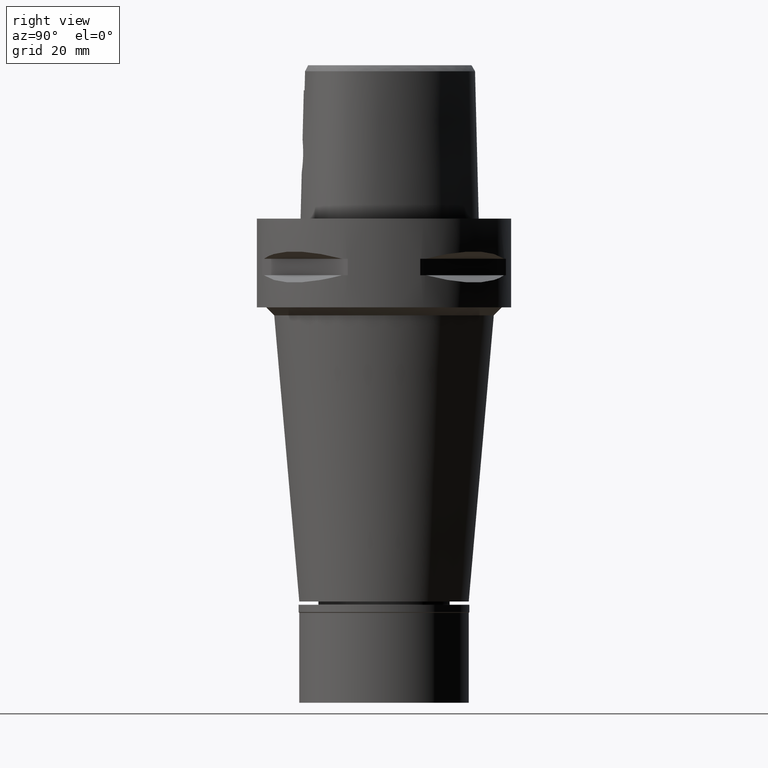
[diagram: clean part render]
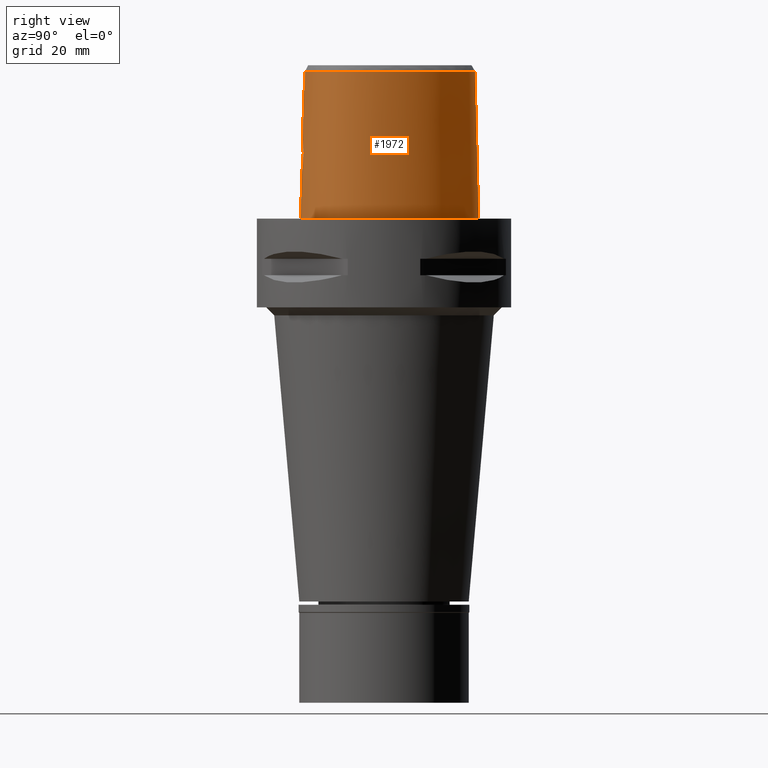
[diagram: same view with one face highlighted and labeled with its STEP entity id]
A machine part, right view. The second image highlights one B-rep face of the part: STEP entity #1972.
In plain terms, the highlighted face is a freeform B-spline surface patch.
Its self-contained STEP definition (entity closure, byte-faithful):
#5 = CARTESIAN_POINT ( 'NONE',  ( 18.12052889934000177, -13.74516014025000032, 24.59140913771999948 ) ) ;
#8 = VERTEX_POINT ( 'NONE', #4769 ) ;
#25 = CARTESIAN_POINT ( 'NONE',  ( 3.918456791367074921, -20.04170609324424035, 16.53266420033527240 ) ) ;
#35 = CARTESIAN_POINT ( 'NONE',  ( 4.750826074828999879, 21.65775769418999985, 37.25233265418000173 ) ) ;
#43 = ORIENTED_EDGE ( 'NONE', *, *, #2833, .T. ) ;
#63 = CARTESIAN_POINT ( 'NONE',  ( 2.570081009077909151, -20.27170108689831807, 12.36908902938835730 ) ) ;
#71 = CARTESIAN_POINT ( 'NONE',  ( 10.75753574163999993, 19.18839676167000263, -0.7304378951799000985 ) ) ;
#83 = B_SPLINE_CURVE_WITH_KNOTS ( 'NONE', 3,
 ( #607, #2190, #4513, #223, #2167, #3734, #3350, #1807, #4928, #1146, #2707, #2260, #2335, #1566, #1544, #4686, #2734, #406, #320, #1064, #295, #3903, #3490 ),
 .UNSPECIFIED., .F., .F.,
 ( 4, 1, 1, 1, 1, 1, 1, 1, 1, 1, 1, 1, 1, 1, 1, 1, 1, 1, 1, 1, 4 ),
 ( 0.0000000000000000000, 0.08333333333340001148, 0.1666666666667000196, 0.2083333333333000081, 0.2500000000000000000, 0.2916666666666999919, 0.3125000000000000000, 0.3333333333333000081, 0.3541666666666000163, 0.3749999999998999689, 0.4166666666666000163, 0.4583333333332000326, 0.4999999999998999689, 0.5833333333331000015, 0.6666666666664999852, 0.7499999999998000488, 0.8333333333329999704, 0.8749999999997000177, 0.9166666666664000651, 0.9583333333329999704, 1.000000000000000000 ),
 .UNSPECIFIED. ) ;
#88 = CARTESIAN_POINT ( 'NONE',  ( 3.289399613302775638, -20.19244639184481116, 13.13636645578711359 ) ) ;
#96 = CARTESIAN_POINT ( 'NONE',  ( 20.96392229026999843, -8.820258251847000963, 24.59140913771999948 ) ) ;
#112 = CARTESIAN_POINT ( 'NONE',  ( 2.144427845708294811, -20.13626349860851761, 18.93810770242787100 ) ) ;
#120 = CARTESIAN_POINT ( 'NONE',  ( 2.568271206886000080, 23.31126238921000038, -0.7304378951799000985 ) ) ;
#148 = CARTESIAN_POINT ( 'NONE',  ( 20.09084466970000094, -11.59945457773000221, 11.93048562126999990 ) ) ;
#163 = DIRECTION ( 'NONE',  ( 1.756133882148959260E-12, 0.02499051290962944413, -0.9996876883629776112 ) ) ;
#176 = CARTESIAN_POINT ( 'NONE',  ( 3.637738219117000238, -19.56971420299000286, 36.52185956443999970 ) ) ;
#185 = CARTESIAN_POINT ( 'NONE',  ( 2.772326413961004210, -20.10389738242811930, 18.45539022241095495 ) ) ;
#204 = B_SPLINE_CURVE_WITH_KNOTS ( 'NONE', 3,
 ( #677, #5021, #1117, #3434 ),
 .UNSPECIFIED., .F., .F.,
 ( 4, 4 ),
 ( 0.0000000000000000000, 1.000000000000000000 ),
 .UNSPECIFIED. ) ;
#223 = CARTESIAN_POINT ( 'NONE',  ( 11.23259758758072024, -18.89324224333665825, -2.363905650680552320E-06 ) ) ;
#230 = CARTESIAN_POINT ( 'NONE',  ( 4.711967337882999894E-11, 23.47499999999000053, 5.403085386508999448E-14 ) ) ;
#295 = CARTESIAN_POINT ( 'NONE',  ( 2.564517739103601368, 23.29328130818978337, -2.363905650680552320E-06 ) ) ;
#308 = VERTEX_POINT ( 'NONE', #230 ) ;
#320 = CARTESIAN_POINT ( 'NONE',  ( 7.571159464291276286, 21.31457036366172986, -2.363905650680552320E-06 ) ) ;
#344 = CARTESIAN_POINT ( 'NONE',  ( 14.68244497387000003, -17.23001773499000322, -0.7304378951799000985 ) ) ;
#354 = CARTESIAN_POINT ( 'NONE',  ( -1.703765144018000241E-11, 22.56201468012000078, 36.52186680743999858 ) ) ;
#377 = CARTESIAN_POINT ( 'NONE',  ( 1.853272111741999906, -20.08023965809000089, 24.59140913771999948 ) ) ;
#399 = CARTESIAN_POINT ( 'NONE',  ( 1.537967824490479307, -20.34761404973957966, 11.75337532982781497 ) ) ;
#406 = CARTESIAN_POINT ( 'NONE',  ( 10.74572894880317264, 19.17433598300426567, -2.363905650680552320E-06 ) ) ;
#425 = CARTESIAN_POINT ( 'NONE',  ( 4.050037399383527692, -20.04599349312611523, 15.75361975468774567 ) ) ;
#432 = CARTESIAN_POINT ( 'NONE',  ( 13.69241952592000189, 15.03666369287999949, 37.25233265418000173 ) ) ;
#453 = CARTESIAN_POINT ( 'NONE',  ( 3.504989208053717054, -20.16277707627710569, 13.46647361461483783 ) ) ;
#462 = CARTESIAN_POINT ( 'NONE',  ( 20.76670355424000292, 4.663413655831999627, -0.7304378951799000985 ) ) ;
#485 = CARTESIAN_POINT ( 'NONE',  ( 1.511996643077466285, -20.34900293593731746, 11.74281483622962696 ) ) ;
#491 = CARTESIAN_POINT ( 'NONE',  ( 20.94844326360000153, -10.61175397217999894, -0.7304378951799000985 ) ) ;
#506 = CARTESIAN_POINT ( 'NONE',  ( 3.755991642142385789, -20.04748304465439901, 17.01495889863508282 ) ) ;
#511 = CARTESIAN_POINT ( 'NONE',  ( 7.580410842886999845, 21.33037926757000236, -0.7304378951799000985 ) ) ;
#514 = EDGE_CURVE ( 'NONE', #542, #4017, #2557, .T. ) ;
#518 = B_SPLINE_CURVE_WITH_KNOTS ( 'NONE', 3,
 ( #354, #3505, #5085, #1552, #3119, #4721, #4696, #1177, #4299, #4327, #797, #1990, #3250, #4931, #2146, #1741, #4444, #4051, #1393, #589, #4881, #567, #176 ),
 .UNSPECIFIED., .F., .F.,
 ( 4, 1, 1, 1, 1, 1, 1, 1, 1, 1, 1, 1, 1, 1, 1, 1, 1, 1, 1, 1, 4 ),
 ( 0.0000000000000000000, 0.04382683003322122850, 0.08765366006602158533, 0.1314804900989272884, 0.1753073201318329777, 0.2629609801974338024, 0.3506146402631399872, 0.4382683003289512547, 0.5259219603945521904, 0.5697487904274577408, 0.6135756204602582642, 0.6574024504931639257, 0.6793158655095641318, 0.7012292805259644490, 0.7231426955423646552, 0.7450561105587647504, 0.7888829405916705229, 0.8327097706245761843, 0.8765366006573765967, 0.9641902607230826705, 1.000000000000000000 ),
 .UNSPECIFIED. ) ;
#520 = ORIENTED_EDGE ( 'NONE', *, *, #4533, .T. ) ;
#536 = CARTESIAN_POINT ( 'NONE',  ( 0.5662264425281000602, 22.56729383856999860, 37.25233265418000173 ) ) ;
#542 = VERTEX_POINT ( 'NONE', #1236 ) ;
#567 = CARTESIAN_POINT ( 'NONE',  ( 4.467522181836345752, -19.48130276147366757, 36.52186680739948343 ) ) ;
#585 = EDGE_CURVE ( 'NONE', #2046, #2995, #518, .T. ) ;
#589 = CARTESIAN_POINT ( 'NONE',  ( 10.91891095220941033, -18.03046396093493087, 36.52186680739948343 ) ) ;
#598 = CARTESIAN_POINT ( 'NONE',  ( 1.767192251251785473, -20.15197845540285115, 19.14519926632054947 ) ) ;
#602 = CARTESIAN_POINT ( 'NONE',  ( -0.7217521650970000202, 23.47150799234000118, -0.7304378951799000985 ) ) ;
#607 = CARTESIAN_POINT ( 'NONE',  ( -8.195360115544000009E-12, -20.67499999999999716, 5.691743372911998950E-14 ) ) ;
#642 = CARTESIAN_POINT ( 'NONE',  ( 3.671249151389730514, -19.60525176641679579, 34.94790639287000289 ) ) ;
#668 = LINE ( 'NONE', #1838, #3409 ) ;
#677 = CARTESIAN_POINT ( 'NONE',  ( 2.041042029990999821E-08, -19.88004246002000031, 31.80000004972000127 ) ) ;
#679 = CARTESIAN_POINT ( 'NONE',  ( 14.21104783088999923, -16.40237676533000055, 37.25233265418000173 ) ) ;
#731 = CARTESIAN_POINT ( 'NONE',  ( 1.836480365833999873, -19.76356488674000289, 37.25233265418000173 ) ) ;
#765 = CARTESIAN_POINT ( 'NONE',  ( 2.503154195451567254, -19.81241979350776461, 31.80000012137773524 ) ) ;
#779 = CARTESIAN_POINT ( 'NONE',  ( 3.003234361615560566, -20.09064592609333744, 18.21745801850493152 ) ) ;
#787 = CARTESIAN_POINT ( 'NONE',  ( -0.4479923869197999786, -20.05810122003000018, 24.59140913771999948 ) ) ;
#797 = CARTESIAN_POINT ( 'NONE',  ( 21.32871516739706408, -4.105831245034123000, 36.52186680739948343 ) ) ;
#810 = CARTESIAN_POINT ( 'NONE',  ( 3.210108431846574462, -20.20255916619523617, 13.02975361489741957 ) ) ;
#817 = CARTESIAN_POINT ( 'NONE',  ( 20.16779717898000257, 4.447573586975999582, 24.59140913771999948 ) ) ;
#837 = CARTESIAN_POINT ( 'NONE',  ( 2.396851615573325933, -20.28741283536913897, 12.23208293719064699 ) ) ;
#844 = CARTESIAN_POINT ( 'NONE',  ( 21.62788383976000262, -4.104079499420000054, 24.59140913771999948 ) ) ;
#860 = CARTESIAN_POINT ( 'NONE',  ( 4.049995275655165372, -20.05320010482861548, 15.46762644421465183 ) ) ;
#870 = CARTESIAN_POINT ( 'NONE',  ( 7.259695346974999630, 20.78233549180000139, 24.59140913771999948 ) ) ;
#894 = CARTESIAN_POINT ( 'NONE',  ( 4.038482247990498486, -20.06165359963865669, 15.18817721993928060 ) ) ;
#899 = CARTESIAN_POINT ( 'NONE',  ( 14.42198652415999938, 15.65278600602999859, -0.7304378951799000985 ) ) ;
#915 = CARTESIAN_POINT ( 'NONE',  ( 2.305334229541142310, -20.12831948498809354, 18.83048013503184492 ) ) ;
#920 = CARTESIAN_POINT ( 'NONE',  ( 21.31039797424000071, -4.105938499120999730, 37.25233265418000173 ) ) ;
#935 = CARTESIAN_POINT ( 'NONE',  ( 2.467729343595081115, -20.12009802658496582, 18.71204267792693798 ) ) ;
#1008 = CARTESIAN_POINT ( 'NONE',  ( 2.520050460813455739, -20.11738995382102857, 18.67115940201988522 ) ) ;
#1039 = CARTESIAN_POINT ( 'NONE',  ( -0.6834383969750000842, 22.83968675126000036, 24.59140913771999948 ) ) ;
#1064 = CARTESIAN_POINT ( 'NONE',  ( 5.098437039341796151, 22.52602544572460985, -2.363905650680552320E-06 ) ) ;
#1117 = CARTESIAN_POINT ( 'NONE',  ( 6.840721241536353645E-09, -20.08420636276212434, 23.63333344114124657 ) ) ;
#1146 = CARTESIAN_POINT ( 'NONE',  ( 20.93173257620247441, -10.60431643031911442, -2.363905650680552320E-06 ) ) ;
#1163 = CARTESIAN_POINT ( 'NONE',  ( 3.265869583385797359, -20.07528142228585821, 17.89964299956978167 ) ) ;
#1176 = EDGE_CURVE ( 'NONE', #542, #2995, #2798, .T. ) ;
#1177 = CARTESIAN_POINT ( 'NONE',  ( 17.27359236348519644, 9.972912859140043551, 36.52186680739948343 ) ) ;
#1191 = CARTESIAN_POINT ( 'NONE',  ( 2.714817435285833191, -20.25772213911198349, 12.49437854279828031 ) ) ;
#1198 = CARTESIAN_POINT ( 'NONE',  ( -0.4558512608411999789, 22.85344954806000217, 24.59140913771999948 ) ) ;
#1220 = CARTESIAN_POINT ( 'NONE',  ( 3.644654988411417218, -20.14185568965836737, 13.73169098936010002 ) ) ;
#1227 = CARTESIAN_POINT ( 'NONE',  ( 21.57281239781999815, -9.001246196726999216, -0.7304378951799000985 ) ) ;
#1236 = CARTESIAN_POINT ( 'NONE',  ( 3.736696120837999402, -19.67778323291999953, 31.80000004972999861 ) ) ;
#1247 = CARTESIAN_POINT ( 'NONE',  ( 3.850246712485323908, -20.10780614033383884, 14.21172176748870974 ) ) ;
#1257 = CARTESIAN_POINT ( 'NONE',  ( 20.46725036661000274, 4.555493621404000493, 11.93048562126999990 ) ) ;
#1273 = CARTESIAN_POINT ( 'NONE',  ( 3.169150985200410720, -20.20760989054334900, 12.97742286930013478 ) ) ;
#1275 = B_SPLINE_SURFACE_WITH_KNOTS ( 'NONE', 3, 3, ( 
 ( #4629, #1877, #4210, #3461 ),
 ( #4316, #5045, #787, #1509 ),
 ( #5022, #1593, #377, #731 ),
 ( #3081, #3935, #4267, #3879 ),
 ( #4606, #1957, #2311, #3854 ),
 ( #344, #3435, #3524, #679 ),
 ( #5073, #3827, #3133, #3058 ),
 ( #1982, #3546, #5, #2820 ),
 ( #4740, #4065, #2065, #4458 ),
 ( #4436, #148, #3243, #4376 ),
 ( #491, #2891, #1655, #1309 ),
 ( #1227, #4042, #96, #1282 ),
 ( #2505, #4771, #1627, #3628 ),
 ( #1680, #2424, #844, #920 ),
 ( #3221, #3988, #4823, #3685 ),
 ( #462, #1257, #817, #2087 ),
 ( #2869, #2039, #2843, #2397 ),
 ( #899, #2482, #3606, #432 ),
 ( #71, #3573, #4801, #4349 ),
 ( #511, #4402, #870, #2456 ),
 ( #2789, #4019, #3655, #35 ),
 ( #120, #3963, #2008, #3197 ),
 ( #1704, #3267, #4850, #536 ),
 ( #2113, #3160, #1198, #3385 ),
 ( #602, #2216, #1039, #4965 ) ),
 .UNSPECIFIED., .F., .F., .F.,
 ( 4, 1, 1, 1, 1, 1, 1, 1, 1, 1, 1, 1, 1, 1, 1, 1, 1, 1, 1, 1, 1, 1, 4 ),
 ( 4, 4 ),
 ( -0.008985960173572999157, 0.0000000000000000000, 0.08333333333340001148, 0.1666666666667000196, 0.2083333333333000081, 0.2500000000000000000, 0.2916666666666999919, 0.3125000000000000000, 0.3333333333333000081, 0.3541666666666000163, 0.3749999999998999689, 0.4166666666666000163, 0.4583333333332000326, 0.4999999999998999689, 0.5833333333331000015, 0.6666666666664999852, 0.7499999999998000488, 0.8333333333329999704, 0.8749999999997000177, 0.9166666666664000651, 0.9583333333329999704, 1.000000000000000000, 1.011710456763000199 ),
 ( -4.472769720569999869E-09, 1.000000228111000089 ),
 .UNSPECIFIED. ) ;
#1282 = CARTESIAN_POINT ( 'NONE',  ( 20.65947723649999901, -8.729764279407000060, 37.25233265418000173 ) ) ;
#1309 = CARTESIAN_POINT ( 'NONE',  ( 20.07948470674000063, -10.22500054375999845, 37.25233265418000173 ) ) ;
#1322 = CARTESIAN_POINT ( 'NONE',  ( 1.946611601990708040, -20.32311006286680310, 11.93862046598382243 ) ) ;
#1393 = CARTESIAN_POINT ( 'NONE',  ( 14.22011350746465297, -16.41829354688617570, 36.52186680739948343 ) ) ;
#1441 = CARTESIAN_POINT ( 'NONE',  ( 3.637738219117000238, -19.56971420299000286, 36.52185956443999970 ) ) ;
#1509 = CARTESIAN_POINT ( 'NONE',  ( -0.4439347078604000130, -19.74161804925000041, 37.25233265418000173 ) ) ;
#1544 = CARTESIAN_POINT ( 'NONE',  ( 20.74942746471035449, 4.657187520149233428, -2.363905650680552320E-06 ) ) ;
#1552 = CARTESIAN_POINT ( 'NONE',  ( 4.757642236484915799, 21.67478320247190027, 36.52186680739948343 ) ) ;
#1561 = CARTESIAN_POINT ( 'NONE',  ( 3.745459306425696688, -20.04797394566475077, 17.04080371184679166 ) ) ;
#1566 = CARTESIAN_POINT ( 'NONE',  ( 21.97832653638477396, -0.2810937396609591854, -2.363905650680552320E-06 ) ) ;
#1587 = CARTESIAN_POINT ( 'NONE',  ( 2.282207029739326654, -20.29700151028903576, 12.15162930636601146 ) ) ;
#1593 = CARTESIAN_POINT ( 'NONE',  ( 1.870063857649999939, -20.39691442943999888, 11.93048562126999990 ) ) ;
#1618 = CARTESIAN_POINT ( 'NONE',  ( 0.2519697368789032277, -20.38876923348000503, 11.45000000000000107 ) ) ;
#1627 = CARTESIAN_POINT ( 'NONE',  ( 21.44619278377000171, -6.759806529407000220, 24.59140913771999948 ) ) ;
#1647 = CARTESIAN_POINT ( 'NONE',  ( 2.628027080897680001, -20.26624238139287471, 12.41747670474953402 ) ) ;
#1655 = CARTESIAN_POINT ( 'NONE',  ( 20.36913755902999767, -10.35391835323000009, 24.59140913771999948 ) ) ;
#1658 = B_SPLINE_CURVE_WITH_KNOTS ( 'NONE', 3,
 ( #2283, #1618, #2389, #3213, #2082, #2811, #3956, #4764, #4309, #485, #3596, #399, #2059, #1322, #1587, #837, #63, #1647, #1191, #3929, #4430, #2781, #4793, #3566, #4817, #3188, #1273, #810, #88, #2416, #2030, #453, #3540, #1220, #3980, #3622, #4368, #1247, #2863, #2449, #1674, #894, #2836, #4394, #3153, #860, #425, #4342, #4012, #25, #2475, #3236, #4037, #2001, #506, #3649, #1561, #3129, #4732, #4707, #1163, #2753, #1975, #779, #2360, #2886, #2961, #2178, #2157, #185, #3337, #1008, #935, #1697, #915, #112, #2556, #4111, #598, #4547, #1798, #4889, #3702, #2599, #4153 ),
 .UNSPECIFIED., .F., .F.,
 ( 4, 2, 2, 1, 1, 1, 2, 2, 2, 2, 2, 1, 1, 2, 2, 2, 2, 2, 2, 1, 2, 2, 2, 2, 1, 2, 2, 2, 2, 1, 1, 1, 2, 2, 2, 2, 2, 1, 1, 2, 2, 2, 2, 2, 2, 1, 2, 2, 4 ),
 ( 0.0000000000000000000, 0.06249999999999511502, 0.09374999999999265865, 0.1093749999999914235, 0.1171874999999907296, 0.1210937499999903966, 0.1230468749999902300, 0.1249999999999900635, 0.1874999999999801825, 0.2187499999999751032, 0.2343749999999726885, 0.2421874999999714950, 0.2460937499999708844, 0.2480468749999704681, 0.2499999999999700240, 0.2812499999999628075, 0.2968749999999591993, 0.3124999999999555911, 0.3437499999999480416, 0.3593749999999442668, 0.3671874999999423794, 0.3749999999999404920, 0.4374999999999257261, 0.4687499999999183431, 0.4843749999999148459, 0.4921874999999133471, 0.4999999999999118483, 0.5624999999998991917, 0.5937499999998928635, 0.6093749999998896438, 0.6171874999998880895, 0.6210937499998873124, 0.6230468749998872013, 0.6249999999998872013, 0.6874999999998976374, 0.7187499999999025224, 0.7343749999999049649, 0.7421874999999065192, 0.7460937499999071854, 0.7480468749999075184, 0.7499999999999079625, 0.7812499999999188427, 0.7968749999999242828, 0.8124999999999297229, 0.8437499999999406031, 0.8593749999999460432, 0.8671874999999487077, 0.8749999999999514833, 1.000000000000000000 ),
 .UNSPECIFIED. ) ;
#1674 = CARTESIAN_POINT ( 'NONE',  ( 4.020738798783058954, -20.06858537623217487, 14.99755720130812620 ) ) ;
#1680 = CARTESIAN_POINT ( 'NONE',  ( 22.26285557078999844, -4.100361500017000616, -0.7304378951799000985 ) ) ;
#1697 = CARTESIAN_POINT ( 'NONE',  ( 2.361140904827189857, -20.12552479265212924, 18.79118822093420960 ) ) ;
#1704 = CARTESIAN_POINT ( 'NONE',  ( 0.6155340743205000020, 23.51883498295000052, -0.7304378951799000985 ) ) ;
#1741 = CARTESIAN_POINT ( 'NONE',  ( 18.90964962508139280, -12.28759713487669103, 36.52186680739948343 ) ) ;
#1798 = CARTESIAN_POINT ( 'NONE',  ( 1.613182323480255143, -20.15753140428500956, 19.21500890072886847 ) ) ;
#1807 = CARTESIAN_POINT ( 'NONE',  ( 19.64947370652028980, -12.82525394105311989, -2.363905650680552320E-06 ) ) ;
#1838 = CARTESIAN_POINT ( 'NONE',  ( -1.023561814321999967E-12, -20.38876923348000147, 11.44999999999999929 ) ) ;
#1874 = EDGE_CURVE ( 'NONE', #2489, #308, #83, .T. ) ;
#1877 = CARTESIAN_POINT ( 'NONE',  ( -0.6779734120753000415, -20.37023475397000283, 11.93048562126999990 ) ) ;
#1957 = CARTESIAN_POINT ( 'NONE',  ( 11.13012652793000079, -18.61140108444999797, 11.93048562126999990 ) ) ;
#1972 = ADVANCED_FACE ( 'NONE', ( #2288 ), #1275, .T. ) ;
#1975 = CARTESIAN_POINT ( 'NONE',  ( 3.080229322179501850, -20.08617626112514998, 18.13071590546873324 ) ) ;
#1982 = CARTESIAN_POINT ( 'NONE',  ( 18.58171406978999940, -14.18198046921999911, -0.7304378951799000985 ) ) ;
#1990 = CARTESIAN_POINT ( 'NONE',  ( 21.14970177531305495, -6.717195943319611118, 36.52186680739948343 ) ) ;
#2001 = CARTESIAN_POINT ( 'NONE',  ( 3.765593220699524402, -20.04704214534188722, 16.99108095766887061 ) ) ;
#2008 = CARTESIAN_POINT ( 'NONE',  ( 2.438150569320999939, 22.68791622983999900, 24.59140913771999948 ) ) ;
#2030 = CARTESIAN_POINT ( 'NONE',  ( 3.437023659240730833, -20.17240543795051266, 13.35378256598082736 ) ) ;
#2039 = CARTESIAN_POINT ( 'NONE',  ( 17.80867300947999965, 10.28184204427999937, 11.93048562126999990 ) ) ;
#2046 = VERTEX_POINT ( 'NONE', #2988 ) ;
#2059 = CARTESIAN_POINT ( 'NONE',  ( 1.734379789051311294, -20.33697246834272576, 11.83436638252414319 ) ) ;
#2065 = CARTESIAN_POINT ( 'NONE',  ( 19.15132509479000333, -12.46323140312000177, 24.59140913771999948 ) ) ;
#2082 = CARTESIAN_POINT ( 'NONE',  ( 1.028701314430592317, -20.37062275902201947, 11.58049741886263284 ) ) ;
#2087 = CARTESIAN_POINT ( 'NONE',  ( 19.86834399134000151, 4.339653552549000537, 37.25233265418000173 ) ) ;
#2113 = CARTESIAN_POINT ( 'NONE',  ( -0.4812391256269000217, 23.48607176824999954, -0.7304378951799000985 ) ) ;
#2146 = CARTESIAN_POINT ( 'NONE',  ( 19.55745538000928718, -11.29150212657845387, 36.52186680739948343 ) ) ;
#2147 = ORIENTED_EDGE ( 'NONE', *, *, #514, .T. ) ;
#2157 = CARTESIAN_POINT ( 'NONE',  ( 2.871987183428478918, -20.09819914941970254, 18.35556622516749670 ) ) ;
#2167 = CARTESIAN_POINT ( 'NONE',  ( 14.67337967353548400, -17.21410161400581984, -2.363905650680552320E-06 ) ) ;
#2178 = CARTESIAN_POINT ( 'NONE',  ( 2.880386059684364675, -20.09771851976561763, 18.34709984349601797 ) ) ;
#2179 = VECTOR ( 'NONE', #163, 999.9999999999998863 ) ;
#2190 = CARTESIAN_POINT ( 'NONE',  ( 2.113823676580274480, -20.67500005909406013, -2.363905650680552320E-06 ) ) ;
#2216 = CARTESIAN_POINT ( 'NONE',  ( -0.7025952810359999967, 23.15559737179999900, 11.93048562126999990 ) ) ;
#2260 = CARTESIAN_POINT ( 'NONE',  ( 22.05732880196588397, -6.847636727192647932, -2.363905650680552320E-06 ) ) ;
#2283 = CARTESIAN_POINT ( 'NONE',  ( -1.023561814321999967E-12, -20.38876923348000147, 11.44999999999999929 ) ) ;
#2288 = FACE_OUTER_BOUND ( 'NONE', #2719, .T. ) ;
#2311 = CARTESIAN_POINT ( 'NONE',  ( 11.02138175147999988, -18.31230440366000067, 24.59140913771999948 ) ) ;
#2335 = CARTESIAN_POINT ( 'NONE',  ( 22.24453913782586767, -4.100468749652660172, -2.363905650680552320E-06 ) ) ;
#2360 = CARTESIAN_POINT ( 'NONE',  ( 2.963657114686569560, -20.09293563006364636, 18.26079471621887507 ) ) ;
#2389 = CARTESIAN_POINT ( 'NONE',  ( 0.5100579658808596095, -20.38531276215466903, 11.47358267918780506 ) ) ;
#2397 = CARTESIAN_POINT ( 'NONE',  ( 17.25769825268999824, 9.963736383157998588, 37.25233265418000173 ) ) ;
#2416 = CARTESIAN_POINT ( 'NONE',  ( 3.328551379878740502, -20.18727222454431214, 13.19186960104623907 ) ) ;
#2424 = CARTESIAN_POINT ( 'NONE',  ( 21.94536970527000008, -4.102220499717999402, 11.93048562126999990 ) ) ;
#2440 = EDGE_CURVE ( 'NONE', #2046, #308, #2931, .T. ) ;
#2449 = CARTESIAN_POINT ( 'NONE',  ( 4.002664568940697443, -20.07397280447634813, 14.86850854325289717 ) ) ;
#2456 = CARTESIAN_POINT ( 'NONE',  ( 7.099337599018999967, 20.50831360392000136, 37.25233265418000173 ) ) ;
#2475 = CARTESIAN_POINT ( 'NONE',  ( 3.860403433732511491, -20.04330035601035220, 16.72651338066181026 ) ) ;
#2482 = CARTESIAN_POINT ( 'NONE',  ( 14.17879752475000110, 15.44741190164000066, 11.93048562126999990 ) ) ;
#2489 = VERTEX_POINT ( 'NONE', #4980 ) ;
#2505 = CARTESIAN_POINT ( 'NONE',  ( 22.07548129646999868, -6.850245536254999656, -0.7304378951799000985 ) ) ;
#2556 = CARTESIAN_POINT ( 'NONE',  ( 2.032175996666464535, -20.14130468680087560, 19.00576489869021302 ) ) ;
#2557 = B_SPLINE_CURVE_WITH_KNOTS ( 'NONE', 3,
 ( #2767, #765, #3172, #3970 ),
 .UNSPECIFIED., .F., .F.,
 ( 4, 4 ),
 ( 0.0000000000000000000, 1.000000000000000000 ),
 .UNSPECIFIED. ) ;
#2599 = CARTESIAN_POINT ( 'NONE',  ( 0.4948470747602111142, -20.18628283969001203, 19.55000000000000426 ) ) ;
#2655 = ORIENTED_EDGE ( 'NONE', *, *, #1874, .T. ) ;
#2707 = CARTESIAN_POINT ( 'NONE',  ( 21.55524831694449617, -8.996025407520710004, -2.363905650680552320E-06 ) ) ;
#2719 = EDGE_LOOP ( 'NONE', ( #4481, #2740, #3067, #2147, #43, #3576, #520, #2655 ) ) ;
#2734 = CARTESIAN_POINT ( 'NONE',  ( 14.40795643498416467, 15.64093753835265765, -2.363905650680552320E-06 ) ) ;
#2740 = ORIENTED_EDGE ( 'NONE', *, *, #585, .T. ) ;
#2753 = CARTESIAN_POINT ( 'NONE',  ( 3.128678969656458086, -20.08334280844291087, 18.07279819847896718 ) ) ;
#2767 = CARTESIAN_POINT ( 'NONE',  ( 3.736696120837999402, -19.67778323291999953, 31.80000004972999861 ) ) ;
#2781 = CARTESIAN_POINT ( 'NONE',  ( 2.830175095658037154, -20.24590160278928508, 12.60298252333451252 ) ) ;
#2789 = CARTESIAN_POINT ( 'NONE',  ( 5.105252918116000238, 22.54305024741999830, -0.7304378951799000985 ) ) ;
#2798 = B_SPLINE_CURVE_WITH_KNOTS ( 'NONE', 3,
 ( #4216, #5005, #642, #1441 ),
 .UNSPECIFIED., .F., .F.,
 ( 4, 4 ),
 ( 0.0000000000000000000, 1.000000000000000000 ),
 .UNSPECIFIED. ) ;
#2811 = CARTESIAN_POINT ( 'NONE',  ( 1.222756221967065127, -20.36284569854003124, 11.63840396453690929 ) ) ;
#2820 = CARTESIAN_POINT ( 'NONE',  ( 17.88993631411999985, -13.52674997575999960, 37.25233265418000173 ) ) ;
#2833 = EDGE_CURVE ( 'NONE', #4017, #3157, #204, .T. ) ;
#2836 = CARTESIAN_POINT ( 'NONE',  ( 4.045013207763220819, -20.05847505278510567, 15.28275217474474346 ) ) ;
#2843 = CARTESIAN_POINT ( 'NONE',  ( 17.53318563108999939, 10.12278921372000084, 24.59140913771999948 ) ) ;
#2863 = CARTESIAN_POINT ( 'NONE',  ( 3.927790621264558357, -20.09243382075442241, 14.47756111131404921 ) ) ;
#2869 = CARTESIAN_POINT ( 'NONE',  ( 18.08416038786999991, 10.44089487483999967, -0.7304378951799000985 ) ) ;
#2886 = CARTESIAN_POINT ( 'NONE',  ( 2.915545606163056469, -20.09570297646320114, 18.31119129212002150 ) ) ;
#2891 = CARTESIAN_POINT ( 'NONE',  ( 20.65879041131000093, -10.48283616271000085, 11.93048562126999990 ) ) ;
#2931 = LINE ( 'NONE', #3701, #2179 ) ;
#2961 = CARTESIAN_POINT ( 'NONE',  ( 2.894506219204642683, -20.09690955887034391, 18.33274339089242844 ) ) ;
#2988 = CARTESIAN_POINT ( 'NONE',  ( -1.703765144018000241E-11, 22.56201468012000078, 36.52186680743999858 ) ) ;
#2995 = VERTEX_POINT ( 'NONE', #3522 ) ;
#3058 = CARTESIAN_POINT ( 'NONE',  ( 16.38077671197999763, -14.94316433196999938, 37.25233265418000173 ) ) ;
#3067 = ORIENTED_EDGE ( 'NONE', *, *, #1176, .F. ) ;
#3081 = CARTESIAN_POINT ( 'NONE',  ( 6.344715577655000160, -20.31619965499999836, -0.7304378951799000985 ) ) ;
#3119 = CARTESIAN_POINT ( 'NONE',  ( 7.108589361577728027, 20.52412316394983804, 36.52186680739948343 ) ) ;
#3129 = CARTESIAN_POINT ( 'NONE',  ( 3.664274183418350983, -20.05181531545110829, 17.23726368441676371 ) ) ;
#3133 = CARTESIAN_POINT ( 'NONE',  ( 16.57726024613999982, -15.19304449977999916, 24.59140913771999948 ) ) ;
#3153 = CARTESIAN_POINT ( 'NONE',  ( 4.049643110176168292, -20.05399160878485887, 15.43795828968013595 ) ) ;
#3157 = VERTEX_POINT ( 'NONE', #3673 ) ;
#3160 = CARTESIAN_POINT ( 'NONE',  ( -0.4685451932340999881, 23.16976065816000130, 11.93048562126999990 ) ) ;
#3172 = CARTESIAN_POINT ( 'NONE',  ( 1.251533272182049128, -19.88005341395336600, 31.80000012137773524 ) ) ;
#3188 = CARTESIAN_POINT ( 'NONE',  ( 3.042491796684531291, -20.22274507510633867, 12.82354767342773272 ) ) ;
#3197 = CARTESIAN_POINT ( 'NONE',  ( 2.373090250538999690, 22.37624315014999610, 37.25233265418000173 ) ) ;
#3213 = CARTESIAN_POINT ( 'NONE',  ( 0.8988479711755551493, -20.37494334817868236, 11.54879813003848987 ) ) ;
#3221 = CARTESIAN_POINT ( 'NONE',  ( 21.99640702129000047, -0.2778990152833000216, -0.7304378951799000985 ) ) ;
#3236 = CARTESIAN_POINT ( 'NONE',  ( 3.828814954406154936, -20.04436409866707436, 16.82317999466501490 ) ) ;
#3243 = CARTESIAN_POINT ( 'NONE',  ( 19.81622808960000270, -11.44090462068999869, 24.59140913771999948 ) ) ;
#3250 = CARTESIAN_POINT ( 'NONE',  ( 20.67704204634275200, -8.734985285293417334, 36.52186680739948343 ) ) ;
#3267 = CARTESIAN_POINT ( 'NONE',  ( 0.5990981970563999948, 23.20165460148999870, 11.93048562126999990 ) ) ;
#3337 = CARTESIAN_POINT ( 'NONE',  ( 2.673904828757555308, -20.10928166633813419, 18.54472627324817680 ) ) ;
#3350 = CARTESIAN_POINT ( 'NONE',  ( 18.56841069446557313, -14.16937992358677789, -2.363905650680552320E-06 ) ) ;
#3385 = CARTESIAN_POINT ( 'NONE',  ( -0.4431573284484000008, 22.53713843795999949, 37.25233265418000173 ) ) ;
#3409 = VECTOR ( 'NONE', #4982, 1000.000000000000114 ) ;
#3434 = CARTESIAN_POINT ( 'NONE',  ( 0.0000000000000000000, -20.18628283968999781, 19.55000000000000071 ) ) ;
#3435 = CARTESIAN_POINT ( 'NONE',  ( 14.52531259288000065, -16.95413741177000233, 11.93048562126999990 ) ) ;
#3456 = CARTESIAN_POINT ( 'NONE',  ( 2.041042029990999821E-08, -19.88004246002000031, 31.80000004972000127 ) ) ;
#3461 = CARTESIAN_POINT ( 'NONE',  ( -0.6657939487749999774, -19.73734192332999626, 37.25233265418000173 ) ) ;
#3490 = CARTESIAN_POINT ( 'NONE',  ( 4.711967337882999894E-11, 23.47499999999000053, 5.403085386508999448E-14 ) ) ;
#3505 = CARTESIAN_POINT ( 'NONE',  ( 0.7901461619515945944, 22.56201467849870212, 36.52186680739948343 ) ) ;
#3522 = CARTESIAN_POINT ( 'NONE',  ( 3.637738219117000238, -19.56971420299000286, 36.52185956443999970 ) ) ;
#3524 = CARTESIAN_POINT ( 'NONE',  ( 14.36818021187999861, -16.67825708855000144, 24.59140913771999948 ) ) ;
#3540 = CARTESIAN_POINT ( 'NONE',  ( 3.599362307144391426, -20.14875877785065938, 13.64217581319817363 ) ) ;
#3546 = CARTESIAN_POINT ( 'NONE',  ( 18.35112148457000103, -13.96357030474000105, 11.93048562126999990 ) ) ;
#3566 = CARTESIAN_POINT ( 'NONE',  ( 2.853007646184912094, -20.24348516854156443, 12.62547111175370773 ) ) ;
#3573 = CARTESIAN_POINT ( 'NONE',  ( 10.55288400349000000, 18.94467580938000140, 11.93048562126999990 ) ) ;
#3576 = ORIENTED_EDGE ( 'NONE', *, *, #4143, .F. ) ;
#3596 = CARTESIAN_POINT ( 'NONE',  ( 1.527965580144372781, -20.34815231994709706, 11.74928068373174561 ) ) ;
#3606 = CARTESIAN_POINT ( 'NONE',  ( 13.93560852533000016, 15.24203779726000008, 24.59140913771999948 ) ) ;
#3622 = CARTESIAN_POINT ( 'NONE',  ( 3.714384130429928987, -20.13065104889713552, 13.88538127549326084 ) ) ;
#3628 = CARTESIAN_POINT ( 'NONE',  ( 21.13154852742000145, -6.714587025982999613, 37.25233265418000173 ) ) ;
#3649 = CARTESIAN_POINT ( 'NONE',  ( 3.749536200693853516, -20.04778253193094528, 17.03086640830719034 ) ) ;
#3655 = CARTESIAN_POINT ( 'NONE',  ( 4.868968355925000324, 21.95285521194000111, 24.59140913771999948 ) ) ;
#3673 = CARTESIAN_POINT ( 'NONE',  ( 0.0000000000000000000, -20.18628283968999781, 19.55000000000000071 ) ) ;
#3685 = CARTESIAN_POINT ( 'NONE',  ( 21.05621876352000044, -0.4440252205535000218, 37.25233265418000173 ) ) ;
#3701 = CARTESIAN_POINT ( 'NONE',  ( -1.703765144018000241E-11, 22.56201468012000078, 36.52186680743999858 ) ) ;
#3702 = CARTESIAN_POINT ( 'NONE',  ( 1.027682876504587339, -20.17741712424493272, 19.45809765211912179 ) ) ;
#3734 = CARTESIAN_POINT ( 'NONE',  ( 16.95889176262598497, -15.67838871852732296, -2.363905650680552320E-06 ) ) ;
#3827 = CARTESIAN_POINT ( 'NONE',  ( 16.77374378029000113, -15.44292466758999893, 11.93048562126999990 ) ) ;
#3854 = CARTESIAN_POINT ( 'NONE',  ( 10.91263697503000074, -18.01320772287999716, 37.25233265418000173 ) ) ;
#3879 = CARTESIAN_POINT ( 'NONE',  ( 6.175998538634999591, -19.37631759499999973, 37.25233265418000173 ) ) ;
#3903 = CARTESIAN_POINT ( 'NONE',  ( 0.8548392464959057024, 23.47500005910224630, -2.363905650680552320E-06 ) ) ;
#3929 = CARTESIAN_POINT ( 'NONE',  ( 2.758179676619023191, -20.25337897196584436, 12.53390918840871393 ) ) ;
#3935 = CARTESIAN_POINT ( 'NONE',  ( 6.288476564647999645, -20.00290563500000118, 11.93048562126999990 ) ) ;
#3956 = CARTESIAN_POINT ( 'NONE',  ( 1.319600680390136116, -20.35863312411228776, 11.66994494017183470 ) ) ;
#3963 = CARTESIAN_POINT ( 'NONE',  ( 2.503210888104000276, 22.99958930952999836, 11.93048562126999990 ) ) ;
#3970 = CARTESIAN_POINT ( 'NONE',  ( 2.041042029990999821E-08, -19.88004246002000031, 31.80000004972000127 ) ) ;
#3980 = CARTESIAN_POINT ( 'NONE',  ( 3.686910441482199374, -20.13511169299744097, 13.82359477142099813 ) ) ;
#3988 = CARTESIAN_POINT ( 'NONE',  ( 21.68301093535999868, -0.3332744170400000483, 11.93048562126999990 ) ) ;
#4012 = CARTESIAN_POINT ( 'NONE',  ( 3.950323019394553992, -20.04135421479659485, 16.40274729700124823 ) ) ;
#4017 = VERTEX_POINT ( 'NONE', #3456 ) ;
#4019 = CARTESIAN_POINT ( 'NONE',  ( 4.987110637021000770, 22.24795272968000148, 11.93048562126999990 ) ) ;
#4037 = CARTESIAN_POINT ( 'NONE',  ( 3.787426346249939346, -20.04607170149545681, 16.93525315950587640 ) ) ;
#4042 = CARTESIAN_POINT ( 'NONE',  ( 21.26836734404000140, -8.910752224287000089, 11.93048562126999990 ) ) ;
#4051 = CARTESIAN_POINT ( 'NONE',  ( 16.39211273426714754, -14.95758104715951120, 36.52186680739948343 ) ) ;
#4065 = CARTESIAN_POINT ( 'NONE',  ( 19.40779762270999953, -12.64961922652000048, 11.93048562126999990 ) ) ;
#4111 = CARTESIAN_POINT ( 'NONE',  ( 1.856701250897947464, -20.14848423775751485, 19.09993988373319240 ) ) ;
#4143 = EDGE_CURVE ( 'NONE', #8, #3157, #1658, .T. ) ;
#4153 = CARTESIAN_POINT ( 'NONE',  ( 0.0000000000000000000, -20.18628283968999781, 19.55000000000000071 ) ) ;
#4210 = CARTESIAN_POINT ( 'NONE',  ( -0.6718836804251999695, -20.05378833865000132, 24.59140913771999948 ) ) ;
#4216 = CARTESIAN_POINT ( 'NONE',  ( 3.736696120837999402, -19.67778323291999953, 31.80000004972999861 ) ) ;
#4267 = CARTESIAN_POINT ( 'NONE',  ( 6.232237551641000017, -19.68961161500000046, 24.59140913771999948 ) ) ;
#4299 = CARTESIAN_POINT ( 'NONE',  ( 19.88562079788543713, 4.345879946637063007, 36.52186680739948343 ) ) ;
#4309 = CARTESIAN_POINT ( 'NONE',  ( 1.488028627205681742, -20.35026873354180310, 11.73319909950358131 ) ) ;
#4316 = CARTESIAN_POINT ( 'NONE',  ( -0.4561077450385999654, -20.69106756158999971, -0.7304378951799000985 ) ) ;
#4327 = CARTESIAN_POINT ( 'NONE',  ( 21.07429999882496219, -0.4408303635841403501, 36.52186680739948343 ) ) ;
#4342 = CARTESIAN_POINT ( 'NONE',  ( 4.026067555602933723, -20.04243146964289934, 16.01312629724818848 ) ) ;
#4349 = CARTESIAN_POINT ( 'NONE',  ( 10.14358052721000014, 18.45723390479000159, 37.25233265418000173 ) ) ;
#4368 = CARTESIAN_POINT ( 'NONE',  ( 3.727121516754793085, -20.12854809717897453, 13.91496385436843930 ) ) ;
#4376 = CARTESIAN_POINT ( 'NONE',  ( 19.54161150950000092, -11.28235466363999961, 37.25233265418000173 ) ) ;
#4394 = CARTESIAN_POINT ( 'NONE',  ( 4.048221369816550563, -20.05572751809631882, 15.37605551816500871 ) ) ;
#4402 = CARTESIAN_POINT ( 'NONE',  ( 7.420053094931000182, 21.05635737968000143, 11.93048562126999990 ) ) ;
#4430 = CARTESIAN_POINT ( 'NONE',  ( 2.808608589969336489, -20.24816661311874100, 12.58196638594038497 ) ) ;
#4436 = CARTESIAN_POINT ( 'NONE',  ( 20.36546124980000272, -11.75800453477999952, -0.7304378951799000985 ) ) ;
#4444 = CARTESIAN_POINT ( 'NONE',  ( 17.90324024157878213, -13.53935104435837466, 36.52186680739948343 ) ) ;
#4458 = CARTESIAN_POINT ( 'NONE',  ( 18.89485256687000359, -12.27684357972999862, 37.25233265418000173 ) ) ;
#4481 = ORIENTED_EDGE ( 'NONE', *, *, #2440, .F. ) ;
#4513 = CARTESIAN_POINT ( 'NONE',  ( 6.341471029712526963, -20.29812505849476878, -2.363905650680552320E-06 ) ) ;
#4533 = EDGE_CURVE ( 'NONE', #8, #2489, #668, .T. ) ;
#4547 = CARTESIAN_POINT ( 'NONE',  ( 1.675120599120963227, -20.15532933629875245, 19.18749499249620882 ) ) ;
#4606 = CARTESIAN_POINT ( 'NONE',  ( 11.23887130437999993, -18.91049776522999792, -0.7304378951799000985 ) ) ;
#4629 = CARTESIAN_POINT ( 'NONE',  ( -0.6840631437255000336, -20.68668116929999812, -0.7304378951799000985 ) ) ;
#4686 = CARTESIAN_POINT ( 'NONE',  ( 18.06826693670648254, 10.43171877969655981, -2.363905650680552320E-06 ) ) ;
#4696 = CARTESIAN_POINT ( 'NONE',  ( 13.70645019739123427, 15.04851265230762003, 36.52186680739948343 ) ) ;
#4707 = CARTESIAN_POINT ( 'NONE',  ( 3.346444325172779788, -20.07049246070072712, 17.78503332969416562 ) ) ;
#4721 = CARTESIAN_POINT ( 'NONE',  ( 10.15538781006746483, 18.47129526702541824, 36.52186680739948343 ) ) ;
#4732 = CARTESIAN_POINT ( 'NONE',  ( 3.559803832323797046, -20.05788146350401391, 17.44950363748058209 ) ) ;
#4740 = CARTESIAN_POINT ( 'NONE',  ( 19.66427015062999928, -12.83600704991000008, -0.7304378951799000985 ) ) ;
#4764 = CARTESIAN_POINT ( 'NONE',  ( 1.432005274344079204, -20.35315137661976692, 11.71134280122707771 ) ) ;
#4769 = CARTESIAN_POINT ( 'NONE',  ( -1.023561814321999967E-12, -20.38876923348000147, 11.44999999999999929 ) ) ;
#4771 = CARTESIAN_POINT ( 'NONE',  ( 21.76083704012000197, -6.805026032831000826, 11.93048562126999990 ) ) ;
#4793 = CARTESIAN_POINT ( 'NONE',  ( 2.844541275131343472, -20.24438467540248965, 12.61708719065900475 ) ) ;
#4801 = CARTESIAN_POINT ( 'NONE',  ( 10.34823226534999918, 18.70095485709000016, 24.59140913771999948 ) ) ;
#4817 = CARTESIAN_POINT ( 'NONE',  ( 2.953000302317442927, -20.23281254683988806, 12.72512295698802731 ) ) ;
#4823 = CARTESIAN_POINT ( 'NONE',  ( 21.36961484943999778, -0.3886498187967000195, 24.59140913771999948 ) ) ;
#4850 = CARTESIAN_POINT ( 'NONE',  ( 0.5826623197921999564, 22.88447422003000042, 24.59140913771999948 ) ) ;
#4881 = CARTESIAN_POINT ( 'NONE',  ( 7.300578979383024247, -19.07170738130727372, 36.52186680739948343 ) ) ;
#4889 = CARTESIAN_POINT ( 'NONE',  ( 1.583085234474576275, -20.15857747892415119, 19.22794739783264717 ) ) ;
#4928 = CARTESIAN_POINT ( 'NONE',  ( 20.34961803683679094, -11.74885745147594918, -2.363905650680552320E-06 ) ) ;
#4931 = CARTESIAN_POINT ( 'NONE',  ( 20.09619608768667831, -10.23243839430362279, 36.52186680739948343 ) ) ;
#4965 = CARTESIAN_POINT ( 'NONE',  ( -0.6642815129139999497, 22.52377613071999818, 37.25233265418000173 ) ) ;
#4980 = CARTESIAN_POINT ( 'NONE',  ( -8.195360115544000009E-12, -20.67499999999999716, 5.691743372911998950E-14 ) ) ;
#4982 = DIRECTION ( 'NONE',  ( -6.261623113665818692E-13, -0.02499051295389925070, -0.9996876883618708298 ) ) ;
#5005 = CARTESIAN_POINT ( 'NONE',  ( 3.704239288984441103, -19.64128042389065598, 33.37395322129999897 ) ) ;
#5021 = CARTESIAN_POINT ( 'NONE',  ( 6.820735740383051428E-09, -19.98212988583392047, 27.71666688228296849 ) ) ;
#5022 = CARTESIAN_POINT ( 'NONE',  ( 1.886855603557999972, -20.71358920079000043, -0.7304378951799000985 ) ) ;
#5045 = CARTESIAN_POINT ( 'NONE',  ( -0.4520500659792000553, -20.37458439080999995, 11.93048562126999990 ) ) ;
#5073 = CARTESIAN_POINT ( 'NONE',  ( 16.97022731444999977, -15.69280483540000048, -0.7304378951799000985 ) ) ;
#5085 = CARTESIAN_POINT ( 'NONE',  ( 2.376843874103299115, 22.39422497744533658, 36.52186680739948343 ) ) ;